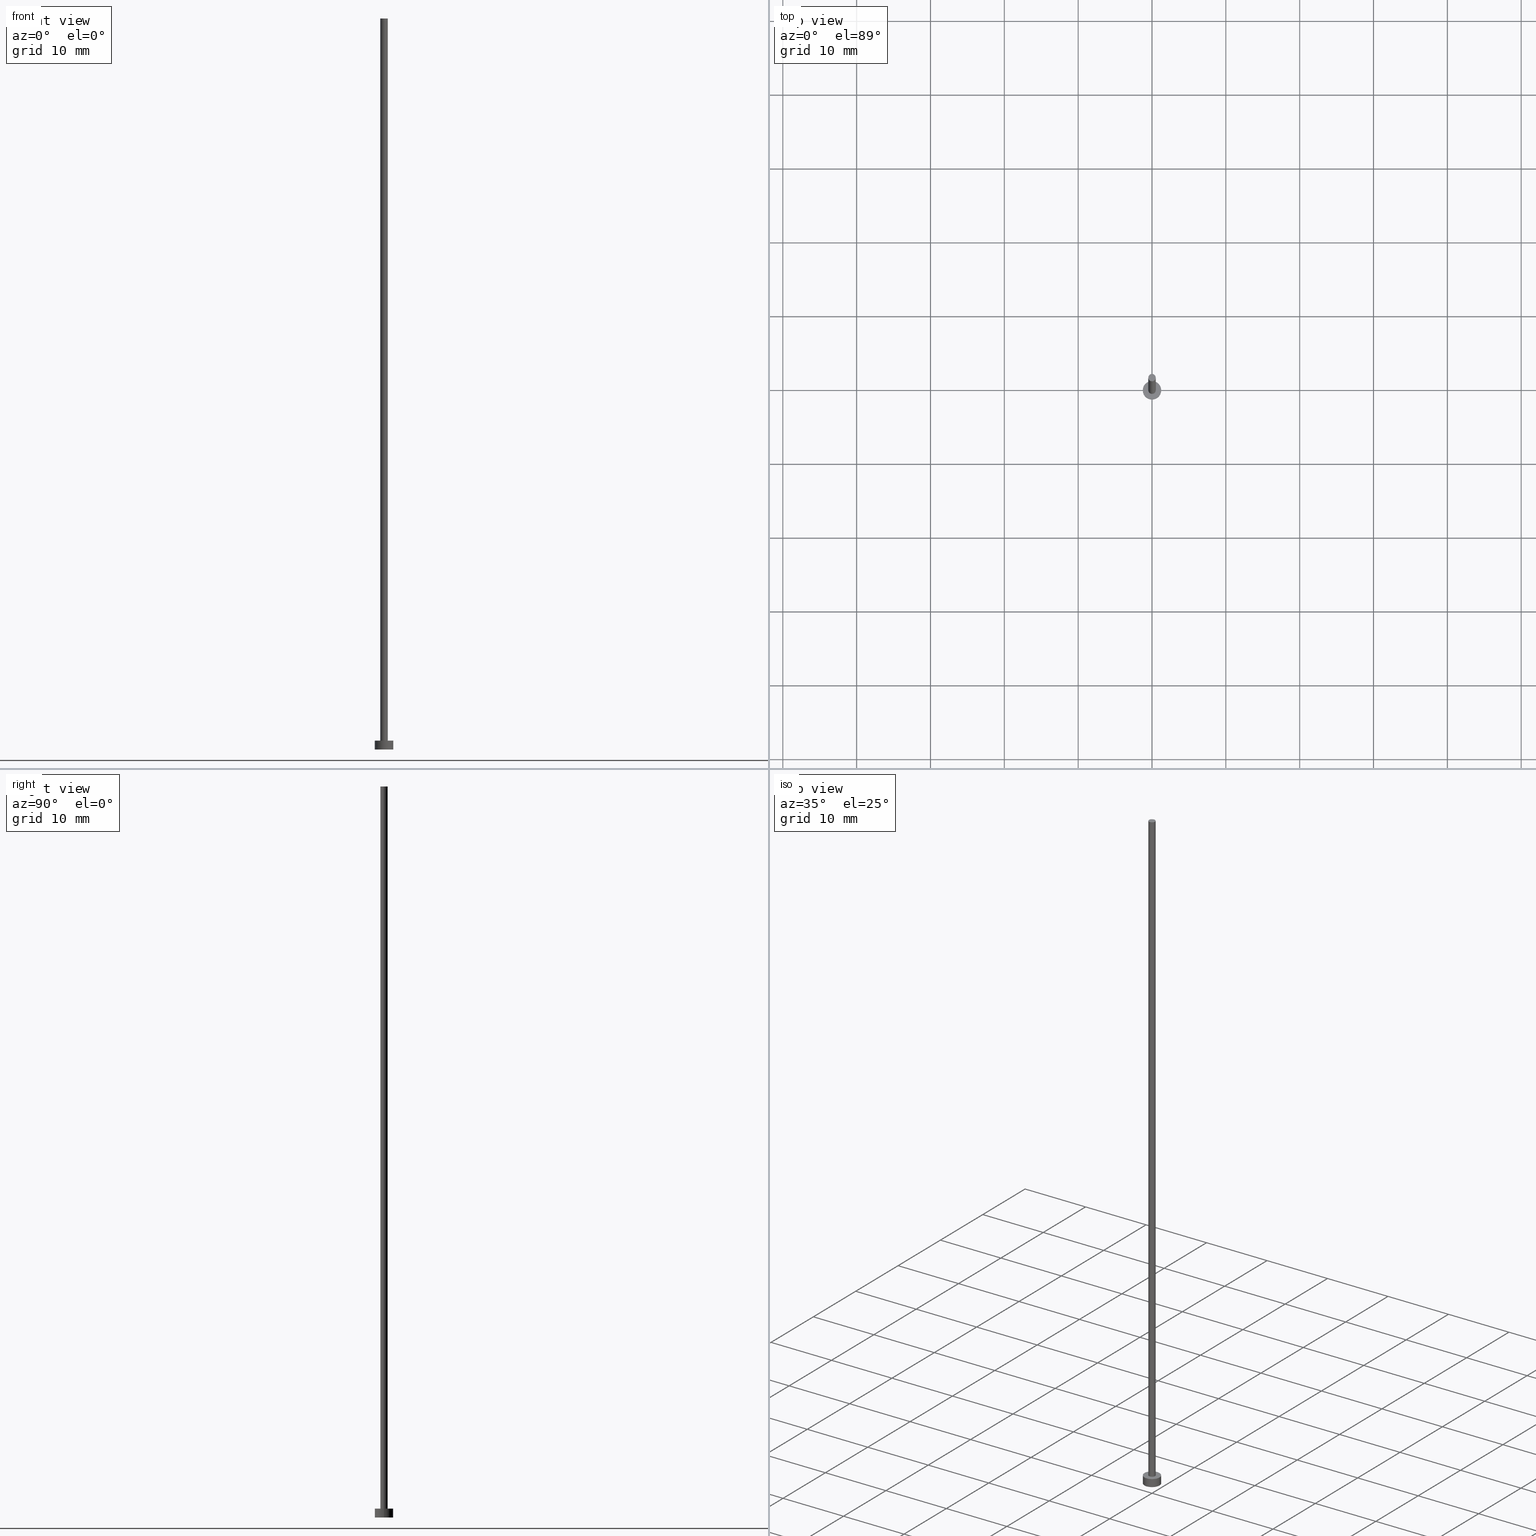
[diagram: canonical four-view strip — front | top / right | iso, engineering-drawing reading convention]
A machine part, canonical four-view strip (front | top / right | iso — engineering-drawing reading convention). The complete STEP part file that produces these views, byte-faithful:
ISO-10303-21;
HEADER;
FILE_DESCRIPTION (( 'STEP AP203' ),
    '1' );
FILE_NAME ('5e0a.STEP',
    '2023-03-10T06:01:43',
    ( '' ),
    ( '' ),
    'SwSTEP 2.0',
    'SolidWorks 2019',
    '' );
FILE_SCHEMA (( 'CONFIG_CONTROL_DESIGN' ));
ENDSEC;

DATA;
#1 = DIRECTION ( 'NONE',  ( 1.000000000000000000, 0.000000000000000000, 0.000000000000000000 ) ) ;
#2 = COORDINATED_UNIVERSAL_TIME_OFFSET ( 1, 0, .AHEAD. ) ;
#3 = CC_DESIGN_DATE_AND_TIME_ASSIGNMENT ( #217, #117, ( #75 ) ) ;
#4 = CALENDAR_DATE ( 2023, 10, 3 ) ;
#5 = DATE_AND_TIME ( #116, #19 ) ;
#6 = VECTOR ( 'NONE', #33, 1000.000000000000000 ) ;
#7 = CIRCLE ( 'NONE', #50, 1.250000000000000000 ) ;
#8 = CARTESIAN_POINT ( 'NONE',  ( 0.000000000000000000, 0.000000000000000000, 99.00000000000000000 ) ) ;
#9 = ORIENTED_EDGE ( 'NONE', *, *, #134, .F. ) ;
#10 = PLANE ( 'NONE',  #41 ) ;
#11 = AXIS2_PLACEMENT_3D ( 'NONE', #130, #167, #212 ) ;
#12 = CARTESIAN_POINT ( 'NONE',  ( 0.5000000000000000000, 6.123233995736766036E-17, 99.00000000000000000 ) ) ;
#13 = DIRECTION ( 'NONE',  ( 0.000000000000000000, 0.000000000000000000, 1.000000000000000000 ) ) ;
#14 = DIRECTION ( 'NONE',  ( 1.000000000000000000, 0.000000000000000000, 0.000000000000000000 ) ) ;
#15 = DIRECTION ( 'NONE',  ( 0.000000000000000000, 0.000000000000000000, 1.000000000000000000 ) ) ;
#16 = DIRECTION ( 'NONE',  ( 1.000000000000000000, 0.000000000000000000, -0.000000000000000000 ) ) ;
#17 = PERSON ( 'NEUR�EN�', 'NEUR�EN�', 'NEUR�EN�', ('NEUR�EN�'), ('NEUR�EN�'), ('NEUR�EN�') ) ;
#18 = SHAPE_DEFINITION_REPRESENTATION ( #249, #254 ) ;
#19 = LOCAL_TIME ( 7, 1, 43.00000000000000000, #154 ) ;
#20 = SECURITY_CLASSIFICATION_LEVEL ( 'unclassified' ) ;
#21 = CARTESIAN_POINT ( 'NONE',  ( 0.000000000000000000, 0.000000000000000000, 0.000000000000000000 ) ) ;
#22 =( GEOMETRIC_REPRESENTATION_CONTEXT ( 3 ) GLOBAL_UNCERTAINTY_ASSIGNED_CONTEXT ( ( #23 ) ) GLOBAL_UNIT_ASSIGNED_CONTEXT ( ( #155, #100, #77 ) ) REPRESENTATION_CONTEXT ( 'NONE', 'WORKASPACE' ) );
#23 = UNCERTAINTY_MEASURE_WITH_UNIT (LENGTH_MEASURE( 1.000000000000000082E-05 ), #155, 'distance_accuracy_value', 'NONE');
#24 = DIRECTION ( 'NONE',  ( 0.000000000000000000, 0.000000000000000000, 1.000000000000000000 ) ) ;
#25 = CIRCLE ( 'NONE', #228, 1.250000000000000000 ) ;
#26 = ORIENTED_EDGE ( 'NONE', *, *, #232, .T. ) ;
#27 = CIRCLE ( 'NONE', #101, 0.5000000000000000000 ) ;
#28 = ORIENTED_EDGE ( 'NONE', *, *, #188, .T. ) ;
#29 = ORIENTED_EDGE ( 'NONE', *, *, #239, .T. ) ;
#30 = EDGE_LOOP ( 'NONE', ( #61, #32, #123, #64 ) ) ;
#31 = VECTOR ( 'NONE', #210, 1000.000000000000000 ) ;
#32 = ORIENTED_EDGE ( 'NONE', *, *, #73, .F. ) ;
#33 = DIRECTION ( 'NONE',  ( -0.000000000000000000, -0.000000000000000000, -1.000000000000000000 ) ) ;
#34 = CARTESIAN_POINT ( 'NONE',  ( 0.000000000000000000, 0.000000000000000000, 99.00000000000000000 ) ) ;
#35 = CC_DESIGN_DATE_AND_TIME_ASSIGNMENT ( #218, #37, ( #131 ) ) ;
#36 = DIRECTION ( 'NONE',  ( 0.000000000000000000, 0.000000000000000000, 1.000000000000000000 ) ) ;
#37 = DATE_TIME_ROLE ( 'creation_date' ) ;
#38 = APPROVAL ( #80, 'NEUR�EN�' ) ;
#39 = PERSON_AND_ORGANIZATION ( #17, #82 ) ;
#40 = APPROVAL_ROLE ( '' ) ;
#41 = AXIS2_PLACEMENT_3D ( 'NONE', #87, #163, #84 ) ;
#42 = APPLICATION_PROTOCOL_DEFINITION ( 'international standard', 'config_control_design', 1994, #255 ) ;
#43 = LOCAL_TIME ( 7, 1, 43.00000000000000000, #63 ) ;
#44 = APPROVAL_DATE_TIME ( #220, #208 ) ;
#45 = EDGE_LOOP ( 'NONE', ( #246, #48 ) ) ;
#46 = DIRECTION ( 'NONE',  ( 0.000000000000000000, 0.000000000000000000, 1.000000000000000000 ) ) ;
#47 = FACE_OUTER_BOUND ( 'NONE', #30, .T. ) ;
#48 = ORIENTED_EDGE ( 'NONE', *, *, #198, .F. ) ;
#49 = ORIENTED_EDGE ( 'NONE', *, *, #192, .F. ) ;
#50 = AXIS2_PLACEMENT_3D ( 'NONE', #151, #252, #72 ) ;
#51 = CARTESIAN_POINT ( 'NONE',  ( -1.250000000000000000, 0.000000000000000000, 1.199999999999999956 ) ) ;
#52 = VECTOR ( 'NONE', #185, 1000.000000000000000 ) ;
#53 = CYLINDRICAL_SURFACE ( 'NONE', #207, 1.250000000000000000 ) ;
#54 = CARTESIAN_POINT ( 'NONE',  ( 0.000000000000000000, 0.000000000000000000, 1.199999999999999956 ) ) ;
#55 = APPROVAL_ROLE ( '' ) ;
#56 = CIRCLE ( 'NONE', #142, 0.5000000000000000000 ) ;
#57 = PERSON_AND_ORGANIZATION ( #17, #82 ) ;
#58 = VERTEX_POINT ( 'NONE', #177 ) ;
#59 = PERSON_AND_ORGANIZATION_ROLE ( 'design_supplier' ) ;
#60 = PERSON_AND_ORGANIZATION_ROLE ( 'design_owner' ) ;
#61 = ORIENTED_EDGE ( 'NONE', *, *, #213, .F. ) ;
#62 = AXIS2_PLACEMENT_3D ( 'NONE', #204, #110, #184 ) ;
#63 = COORDINATED_UNIVERSAL_TIME_OFFSET ( 1, 0, .AHEAD. ) ;
#64 = ORIENTED_EDGE ( 'NONE', *, *, #242, .T. ) ;
#65 = DIRECTION ( 'NONE',  ( 0.000000000000000000, 0.000000000000000000, 1.000000000000000000 ) ) ;
#66 = ORIENTED_EDGE ( 'NONE', *, *, #174, .F. ) ;
#67 = VERTEX_POINT ( 'NONE', #12 ) ;
#68 = VERTEX_POINT ( 'NONE', #141 ) ;
#69 = CARTESIAN_POINT ( 'NONE',  ( 1.250000000000000000, 1.530808498934191571E-16, 0.000000000000000000 ) ) ;
#70 = CARTESIAN_POINT ( 'NONE',  ( 1.250000000000000000, 1.530808498934191571E-16, 1.199999999999999956 ) ) ;
#71 = APPROVAL_PERSON_ORGANIZATION ( #79, #38, #81 ) ;
#72 = DIRECTION ( 'NONE',  ( 1.000000000000000000, 0.000000000000000000, 0.000000000000000000 ) ) ;
#73 = EDGE_CURVE ( 'NONE', #58, #67, #56, .T. ) ;
#74 = CARTESIAN_POINT ( 'NONE',  ( 0.5000000000000000000, 6.123233995736766036E-17, 99.00000000000000000 ) ) ;
#75 = SECURITY_CLASSIFICATION ( '', '', #20 ) ;
#76 = DIRECTION ( 'NONE',  ( 1.000000000000000000, 0.000000000000000000, -0.000000000000000000 ) ) ;
#77 =( NAMED_UNIT ( * ) SI_UNIT ( $, .STERADIAN. ) SOLID_ANGLE_UNIT ( ) );
#78 = CIRCLE ( 'NONE', #219, 1.250000000000000000 ) ;
#79 = PERSON_AND_ORGANIZATION ( #17, #82 ) ;
#80 = APPROVAL_STATUS ( 'not_yet_approved' ) ;
#81 = APPROVAL_ROLE ( '' ) ;
#82 = ORGANIZATION ( 'NEUR�EN�', 'NEUR�EN�', '' ) ;
#83 = CYLINDRICAL_SURFACE ( 'NONE', #62, 1.250000000000000000 ) ;
#84 = DIRECTION ( 'NONE',  ( 1.000000000000000000, 0.000000000000000000, -0.000000000000000000 ) ) ;
#85 = EDGE_CURVE ( 'NONE', #243, #124, #25, .T. ) ;
#86 = DIRECTION ( 'NONE',  ( -0.000000000000000000, -0.000000000000000000, -1.000000000000000000 ) ) ;
#87 = CARTESIAN_POINT ( 'NONE',  ( 0.000000000000000000, 0.000000000000000000, 1.199999999999999956 ) ) ;
#88 = DIRECTION ( 'NONE',  ( -1.000000000000000000, 0.000000000000000000, 0.000000000000000000 ) ) ;
#89 = CARTESIAN_POINT ( 'NONE',  ( -1.250000000000000000, 0.000000000000000000, 1.199999999999999956 ) ) ;
#90 = AXIS2_PLACEMENT_3D ( 'NONE', #180, #86, #88 ) ;
#91 = DIRECTION ( 'NONE',  ( 1.000000000000000000, 0.000000000000000000, 0.000000000000000000 ) ) ;
#92 = AXIS2_PLACEMENT_3D ( 'NONE', #230, #36, #91 ) ;
#93 = FACE_OUTER_BOUND ( 'NONE', #223, .T. ) ;
#94 = CC_DESIGN_PERSON_AND_ORGANIZATION_ASSIGNMENT ( #57, #135, ( #75 ) ) ;
#95 = FACE_OUTER_BOUND ( 'NONE', #145, .T. ) ;
#96 = FACE_OUTER_BOUND ( 'NONE', #45, .T. ) ;
#97 = CC_DESIGN_APPROVAL ( #179, ( #131 ) ) ;
#98 = ADVANCED_FACE ( 'NONE', ( #47 ), #122, .T. ) ;
#99 = PERSON_AND_ORGANIZATION ( #17, #82 ) ;
#100 =( NAMED_UNIT ( * ) PLANE_ANGLE_UNIT ( ) SI_UNIT ( $, .RADIAN. ) );
#101 = AXIS2_PLACEMENT_3D ( 'NONE', #54, #13, #14 ) ;
#102 = CC_DESIGN_PERSON_AND_ORGANIZATION_ASSIGNMENT ( #237, #235, ( #131 ) ) ;
#103 = ORIENTED_EDGE ( 'NONE', *, *, #222, .T. ) ;
#104 = CARTESIAN_POINT ( 'NONE',  ( 0.000000000000000000, 0.000000000000000000, 0.000000000000000000 ) ) ;
#105 = FACE_OUTER_BOUND ( 'NONE', #160, .T. ) ;
#106 = AXIS2_PLACEMENT_3D ( 'NONE', #158, #65, #221 ) ;
#107 = EDGE_LOOP ( 'NONE', ( #156, #225 ) ) ;
#108 = LOCAL_TIME ( 7, 1, 43.00000000000000000, #216 ) ;
#109 = CC_DESIGN_PERSON_AND_ORGANIZATION_ASSIGNMENT ( #99, #193, ( #191 ) ) ;
#110 = DIRECTION ( 'NONE',  ( -0.000000000000000000, -0.000000000000000000, -1.000000000000000000 ) ) ;
#111 = DIRECTION ( 'NONE',  ( -0.000000000000000000, -0.000000000000000000, -1.000000000000000000 ) ) ;
#112 = CARTESIAN_POINT ( 'NONE',  ( 1.250000000000000000, 1.530808498934191571E-16, 1.199999999999999956 ) ) ;
#113 = DIRECTION ( 'NONE',  ( -0.000000000000000000, -0.000000000000000000, -1.000000000000000000 ) ) ;
#114 = CIRCLE ( 'NONE', #106, 0.5000000000000000000 ) ;
#115 = AXIS2_PLACEMENT_3D ( 'NONE', #21, #24, #1 ) ;
#116 = CALENDAR_DATE ( 2023, 10, 3 ) ;
#117 = DATE_TIME_ROLE ( 'classification_date' ) ;
#118 = MANIFOLD_SOLID_BREP ( 'P�idat vysunut�m3', #137 ) ;
#119 = ADVANCED_FACE ( 'NONE', ( #202, #105 ), #10, .T. ) ;
#120 = ORIENTED_EDGE ( 'NONE', *, *, #239, .F. ) ;
#121 = ORIENTED_EDGE ( 'NONE', *, *, #188, .F. ) ;
#122 = CYLINDRICAL_SURFACE ( 'NONE', #90, 0.5000000000000000000 ) ;
#123 = ORIENTED_EDGE ( 'NONE', *, *, #192, .T. ) ;
#124 = VERTEX_POINT ( 'NONE', #69 ) ;
#125 = DIRECTION ( 'NONE',  ( -1.000000000000000000, 0.000000000000000000, 0.000000000000000000 ) ) ;
#126 = ADVANCED_FACE ( 'NONE', ( #146 ), #83, .T. ) ;
#127 = AXIS2_PLACEMENT_3D ( 'NONE', #209, #113, #125 ) ;
#128 = PRODUCT ( '5e0a', '5e0a', '', ( #157 ) ) ;
#129 = DIRECTION ( 'NONE',  ( 1.000000000000000000, 0.000000000000000000, 0.000000000000000000 ) ) ;
#130 = CARTESIAN_POINT ( 'NONE',  ( 0.000000000000000000, 0.000000000000000000, 1.199999999999999956 ) ) ;
#131 = PRODUCT_DEFINITION ( 'NEZN�M�', '', #191, #200 ) ;
#132 = APPROVAL_DATE_TIME ( #197, #179 ) ;
#133 = CIRCLE ( 'NONE', #92, 0.5000000000000000000 ) ;
#134 = EDGE_CURVE ( 'NONE', #67, #58, #114, .T. ) ;
#135 = PERSON_AND_ORGANIZATION_ROLE ( 'classification_officer' ) ;
#136 = ORIENTED_EDGE ( 'NONE', *, *, #242, .F. ) ;
#137 = CLOSED_SHELL ( 'NONE', ( #165, #171, #126, #119, #227, #98, #144 ) ) ;
#138 = CC_DESIGN_APPROVAL ( #208, ( #75 ) ) ;
#139 = CALENDAR_DATE ( 2023, 10, 3 ) ;
#140 = ORIENTED_EDGE ( 'NONE', *, *, #222, .F. ) ;
#141 = CARTESIAN_POINT ( 'NONE',  ( -0.5000000000000000000, 0.000000000000000000, 1.199999999999999956 ) ) ;
#142 = AXIS2_PLACEMENT_3D ( 'NONE', #8, #247, #224 ) ;
#143 = ORIENTED_EDGE ( 'NONE', *, *, #213, .T. ) ;
#144 = ADVANCED_FACE ( 'NONE', ( #187 ), #166, .T. ) ;
#145 = EDGE_LOOP ( 'NONE', ( #120, #159, #199, #121 ) ) ;
#146 = FACE_OUTER_BOUND ( 'NONE', #241, .T. ) ;
#147 = LINE ( 'NONE', #169, #52 ) ;
#148 = APPROVAL_PERSON_ORGANIZATION ( #194, #208, #40 ) ;
#149 = CARTESIAN_POINT ( 'NONE',  ( -1.250000000000000000, 0.000000000000000000, 0.000000000000000000 ) ) ;
#150 = PLANE ( 'NONE',  #181 ) ;
#151 = CARTESIAN_POINT ( 'NONE',  ( 0.000000000000000000, 0.000000000000000000, 1.199999999999999956 ) ) ;
#152 = APPROVAL_DATE_TIME ( #5, #38 ) ;
#153 = LOCAL_TIME ( 7, 1, 43.00000000000000000, #2 ) ;
#154 = COORDINATED_UNIVERSAL_TIME_OFFSET ( 1, 0, .AHEAD. ) ;
#155 =( LENGTH_UNIT ( ) NAMED_UNIT ( * ) SI_UNIT ( .MILLI., .METRE. ) );
#156 = ORIENTED_EDGE ( 'NONE', *, *, #73, .T. ) ;
#157 = MECHANICAL_CONTEXT ( 'NONE', #211, 'mechanical' ) ;
#158 = CARTESIAN_POINT ( 'NONE',  ( 0.000000000000000000, 0.000000000000000000, 99.00000000000000000 ) ) ;
#159 = ORIENTED_EDGE ( 'NONE', *, *, #174, .T. ) ;
#160 = EDGE_LOOP ( 'NONE', ( #103, #29 ) ) ;
#161 = VECTOR ( 'NONE', #111, 1000.000000000000000 ) ;
#162 = PRODUCT_RELATED_PRODUCT_CATEGORY ( 'detail', '', ( #128 ) ) ;
#163 = DIRECTION ( 'NONE',  ( 0.000000000000000000, 0.000000000000000000, 1.000000000000000000 ) ) ;
#164 = ORIENTED_EDGE ( 'NONE', *, *, #85, .T. ) ;
#165 = ADVANCED_FACE ( 'NONE', ( #93 ), #172, .T. ) ;
#166 = PLANE ( 'NONE',  #236 ) ;
#167 = DIRECTION ( 'NONE',  ( 0.000000000000000000, 0.000000000000000000, 1.000000000000000000 ) ) ;
#168 = APPROVAL_PERSON_ORGANIZATION ( #195, #179, #55 ) ;
#169 = CARTESIAN_POINT ( 'NONE',  ( -0.5000000000000000000, 0.000000000000000000, 99.00000000000000000 ) ) ;
#170 = LINE ( 'NONE', #89, #6 ) ;
#171 = ADVANCED_FACE ( 'NONE', ( #95 ), #53, .T. ) ;
#172 = CYLINDRICAL_SURFACE ( 'NONE', #127, 0.5000000000000000000 ) ;
#173 = COORDINATED_UNIVERSAL_TIME_OFFSET ( 1, 0, .AHEAD. ) ;
#174 = EDGE_CURVE ( 'NONE', #226, #124, #234, .T. ) ;
#175 = APPROVAL_STATUS ( 'not_yet_approved' ) ;
#176 = APPLICATION_PROTOCOL_DEFINITION ( 'international standard', 'config_control_design', 1994, #211 ) ;
#177 = CARTESIAN_POINT ( 'NONE',  ( -0.5000000000000000000, 0.000000000000000000, 99.00000000000000000 ) ) ;
#178 = EDGE_LOOP ( 'NONE', ( #136, #182 ) ) ;
#179 = APPROVAL ( #175, 'NEUR�EN�' ) ;
#180 = CARTESIAN_POINT ( 'NONE',  ( 0.000000000000000000, 0.000000000000000000, 99.00000000000000000 ) ) ;
#181 = AXIS2_PLACEMENT_3D ( 'NONE', #233, #189, #16 ) ;
#182 = ORIENTED_EDGE ( 'NONE', *, *, #232, .F. ) ;
#183 = CC_DESIGN_PERSON_AND_ORGANIZATION_ASSIGNMENT ( #238, #60, ( #128 ) ) ;
#184 = DIRECTION ( 'NONE',  ( -1.000000000000000000, 0.000000000000000000, 0.000000000000000000 ) ) ;
#185 = DIRECTION ( 'NONE',  ( -0.000000000000000000, -0.000000000000000000, -1.000000000000000000 ) ) ;
#186 = DIRECTION ( 'NONE',  ( 0.000000000000000000, 0.000000000000000000, 1.000000000000000000 ) ) ;
#187 = FACE_OUTER_BOUND ( 'NONE', #107, .T. ) ;
#188 = EDGE_CURVE ( 'NONE', #203, #243, #170, .T. ) ;
#189 = DIRECTION ( 'NONE',  ( 0.000000000000000000, 0.000000000000000000, 1.000000000000000000 ) ) ;
#190 = APPROVAL_STATUS ( 'not_yet_approved' ) ;
#191 = PRODUCT_DEFINITION_FORMATION_WITH_SPECIFIED_SOURCE ( 'LIBOVOLN�', '', #128, .NOT_KNOWN. ) ;
#192 = EDGE_CURVE ( 'NONE', #58, #68, #147, .T. ) ;
#193 = PERSON_AND_ORGANIZATION_ROLE ( 'creator' ) ;
#194 = PERSON_AND_ORGANIZATION ( #17, #82 ) ;
#195 = PERSON_AND_ORGANIZATION ( #17, #82 ) ;
#196 = CC_DESIGN_SECURITY_CLASSIFICATION ( #75, ( #191 ) ) ;
#197 = DATE_AND_TIME ( #4, #153 ) ;
#198 = EDGE_CURVE ( 'NONE', #124, #243, #78, .T. ) ;
#199 = ORIENTED_EDGE ( 'NONE', *, *, #198, .T. ) ;
#200 = DESIGN_CONTEXT ( 'detailed design', #255, 'design' ) ;
#201 = DIRECTION ( 'NONE',  ( 1.000000000000000000, 0.000000000000000000, 0.000000000000000000 ) ) ;
#202 = FACE_BOUND ( 'NONE', #178, .T. ) ;
#203 = VERTEX_POINT ( 'NONE', #51 ) ;
#204 = CARTESIAN_POINT ( 'NONE',  ( 0.000000000000000000, 0.000000000000000000, 1.199999999999999956 ) ) ;
#205 = DIRECTION ( 'NONE',  ( -0.000000000000000000, -0.000000000000000000, -1.000000000000000000 ) ) ;
#206 = CARTESIAN_POINT ( 'NONE',  ( 0.000000000000000000, 0.000000000000000000, 1.199999999999999956 ) ) ;
#207 = AXIS2_PLACEMENT_3D ( 'NONE', #206, #205, #248 ) ;
#208 = APPROVAL ( #190, 'NEUR�EN�' ) ;
#209 = CARTESIAN_POINT ( 'NONE',  ( 0.000000000000000000, 0.000000000000000000, 99.00000000000000000 ) ) ;
#210 = DIRECTION ( 'NONE',  ( -0.000000000000000000, -0.000000000000000000, -1.000000000000000000 ) ) ;
#211 = APPLICATION_CONTEXT ( 'configuration controlled 3d designs of mechanical parts and assemblies' ) ;
#212 = DIRECTION ( 'NONE',  ( 1.000000000000000000, 0.000000000000000000, 0.000000000000000000 ) ) ;
#213 = EDGE_CURVE ( 'NONE', #67, #244, #250, .T. ) ;
#214 = CALENDAR_DATE ( 2023, 10, 3 ) ;
#215 = CIRCLE ( 'NONE', #11, 1.250000000000000000 ) ;
#216 = COORDINATED_UNIVERSAL_TIME_OFFSET ( 1, 0, .AHEAD. ) ;
#217 = DATE_AND_TIME ( #240, #108 ) ;
#218 = DATE_AND_TIME ( #214, #245 ) ;
#219 = AXIS2_PLACEMENT_3D ( 'NONE', #253, #186, #129 ) ;
#220 = DATE_AND_TIME ( #139, #43 ) ;
#221 = DIRECTION ( 'NONE',  ( 1.000000000000000000, 0.000000000000000000, 0.000000000000000000 ) ) ;
#222 = EDGE_CURVE ( 'NONE', #203, #226, #7, .T. ) ;
#223 = EDGE_LOOP ( 'NONE', ( #9, #143, #26, #49 ) ) ;
#224 = DIRECTION ( 'NONE',  ( 1.000000000000000000, 0.000000000000000000, 0.000000000000000000 ) ) ;
#225 = ORIENTED_EDGE ( 'NONE', *, *, #134, .T. ) ;
#226 = VERTEX_POINT ( 'NONE', #112 ) ;
#227 = ADVANCED_FACE ( 'NONE', ( #96 ), #150, .F. ) ;
#228 = AXIS2_PLACEMENT_3D ( 'NONE', #104, #46, #201 ) ;
#229 = CC_DESIGN_APPROVAL ( #38, ( #191 ) ) ;
#230 = CARTESIAN_POINT ( 'NONE',  ( 0.000000000000000000, 0.000000000000000000, 1.199999999999999956 ) ) ;
#231 = CARTESIAN_POINT ( 'NONE',  ( 0.5000000000000000000, 6.123233995736766036E-17, 1.199999999999999956 ) ) ;
#232 = EDGE_CURVE ( 'NONE', #244, #68, #27, .T. ) ;
#233 = CARTESIAN_POINT ( 'NONE',  ( 0.000000000000000000, 0.000000000000000000, 0.000000000000000000 ) ) ;
#234 = LINE ( 'NONE', #70, #161 ) ;
#235 = PERSON_AND_ORGANIZATION_ROLE ( 'creator' ) ;
#236 = AXIS2_PLACEMENT_3D ( 'NONE', #34, #15, #76 ) ;
#237 = PERSON_AND_ORGANIZATION ( #17, #82 ) ;
#238 = PERSON_AND_ORGANIZATION ( #17, #82 ) ;
#239 = EDGE_CURVE ( 'NONE', #226, #203, #215, .T. ) ;
#240 = CALENDAR_DATE ( 2023, 10, 3 ) ;
#241 = EDGE_LOOP ( 'NONE', ( #66, #140, #28, #164 ) ) ;
#242 = EDGE_CURVE ( 'NONE', #68, #244, #133, .T. ) ;
#243 = VERTEX_POINT ( 'NONE', #149 ) ;
#244 = VERTEX_POINT ( 'NONE', #231 ) ;
#245 = LOCAL_TIME ( 7, 1, 43.00000000000000000, #173 ) ;
#246 = ORIENTED_EDGE ( 'NONE', *, *, #85, .F. ) ;
#247 = DIRECTION ( 'NONE',  ( 0.000000000000000000, 0.000000000000000000, 1.000000000000000000 ) ) ;
#248 = DIRECTION ( 'NONE',  ( -1.000000000000000000, 0.000000000000000000, 0.000000000000000000 ) ) ;
#249 = PRODUCT_DEFINITION_SHAPE ( 'NONE', 'NONE',  #131 ) ;
#250 = LINE ( 'NONE', #74, #31 ) ;
#251 = CC_DESIGN_PERSON_AND_ORGANIZATION_ASSIGNMENT ( #39, #59, ( #191 ) ) ;
#252 = DIRECTION ( 'NONE',  ( 0.000000000000000000, 0.000000000000000000, 1.000000000000000000 ) ) ;
#253 = CARTESIAN_POINT ( 'NONE',  ( 0.000000000000000000, 0.000000000000000000, 0.000000000000000000 ) ) ;
#254 = ADVANCED_BREP_SHAPE_REPRESENTATION ( '5e0a', ( #118, #115 ), #22 ) ;
#255 = APPLICATION_CONTEXT ( 'configuration controlled 3d designs of mechanical parts and assemblies' ) ;
ENDSEC;
END-ISO-10303-21;
